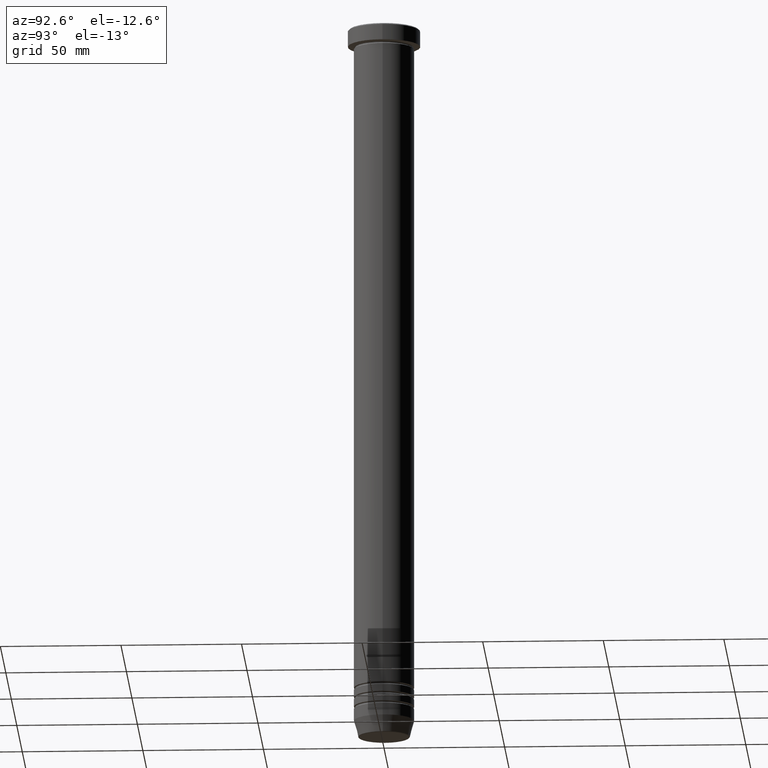
[diagram: clean part render]
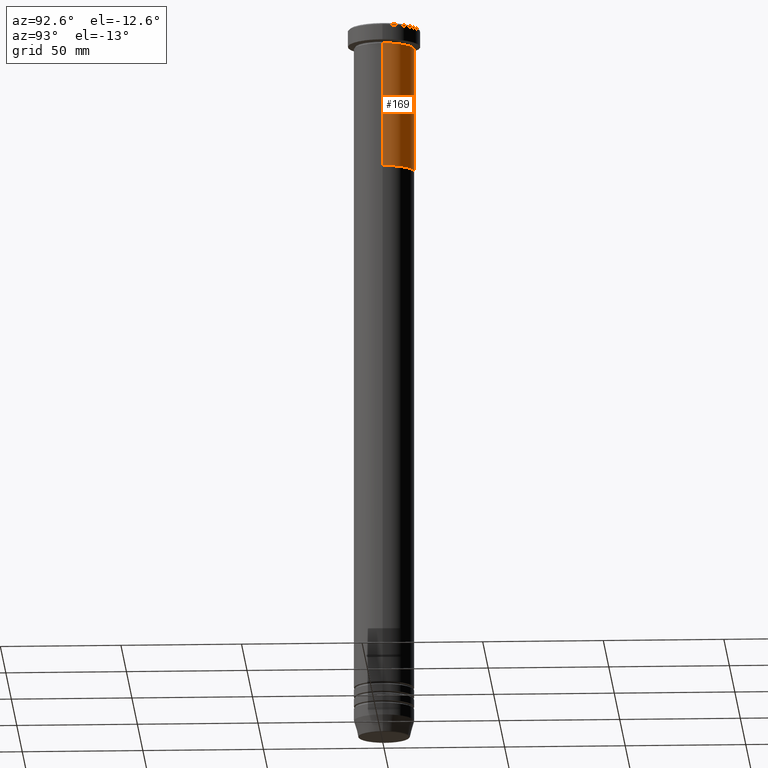
[diagram: same view with one face highlighted and labeled with its STEP entity id]
A machine part, auxiliary view. The second image highlights one B-rep face of the part: STEP entity #169.
In plain terms, the highlighted cylindrical surface (edge-blend (fillet) strip) has radius 12.5 mm, axis along (-0, -0, 1).
Its self-contained STEP definition (entity closure, byte-faithful):
#13 = AXIS2_PLACEMENT_3D ( 'NONE', #369, #616, #703 ) ;
#33 = VERTEX_POINT ( 'NONE', #394 ) ;
#48 = AXIS2_PLACEMENT_3D ( 'NONE', #788, #363, #211 ) ;
#93 = DIRECTION ( 'NONE',  ( -0.000000000000000000, -0.000000000000000000, 1.000000000000000000 ) ) ;
#159 = DIRECTION ( 'NONE',  ( -0.000000000000000000, -0.000000000000000000, 1.000000000000000000 ) ) ;
#168 = VERTEX_POINT ( 'NONE', #747 ) ;
#169 = ADVANCED_FACE ( 'NONE', ( #173 ), #725, .T. ) ;
#171 = CARTESIAN_POINT ( 'NONE',  ( 12.50000000000000000, 0.000000000000000000, 0.000000000000000000 ) ) ;
#173 = FACE_OUTER_BOUND ( 'NONE', #195, .T. ) ;
#195 = EDGE_LOOP ( 'NONE', ( #727, #847, #1017, #291 ) ) ;
#201 = AXIS2_PLACEMENT_3D ( 'NONE', #310, #93, #884 ) ;
#211 = DIRECTION ( 'NONE',  ( 1.000000000000000000, 0.000000000000000000, 0.000000000000000000 ) ) ;
#226 = LINE ( 'NONE', #980, #706 ) ;
#291 = ORIENTED_EDGE ( 'NONE', *, *, #690, .F. ) ;
#310 = CARTESIAN_POINT ( 'NONE',  ( 0.000000000000000000, 0.000000000000000000, 0.000000000000000000 ) ) ;
#361 = EDGE_CURVE ( 'NONE', #984, #33, #530, .T. ) ;
#363 = DIRECTION ( 'NONE',  ( -0.000000000000000000, -0.000000000000000000, 1.000000000000000000 ) ) ;
#369 = CARTESIAN_POINT ( 'NONE',  ( 0.000000000000000000, 0.000000000000000000, -8.000000000000000000 ) ) ;
#371 = VECTOR ( 'NONE', #746, 1000.000000000000000 ) ;
#394 = CARTESIAN_POINT ( 'NONE',  ( -12.50000000000000000, 1.530808498934191521E-15, -60.00000000000000000 ) ) ;
#408 = CARTESIAN_POINT ( 'NONE',  ( 12.50000000000000000, 0.000000000000000000, -60.00000000000000000 ) ) ;
#478 = CIRCLE ( 'NONE', #13, 12.50000000000000000 ) ;
#486 = EDGE_CURVE ( 'NONE', #168, #625, #478, .T. ) ;
#496 = CARTESIAN_POINT ( 'NONE',  ( -12.50000000000000000, 1.530808498934191521E-15, -8.000000000000000000 ) ) ;
#530 = CIRCLE ( 'NONE', #48, 12.50000000000000000 ) ;
#616 = DIRECTION ( 'NONE',  ( -0.000000000000000000, -0.000000000000000000, 1.000000000000000000 ) ) ;
#625 = VERTEX_POINT ( 'NONE', #496 ) ;
#690 = EDGE_CURVE ( 'NONE', #984, #168, #913, .T. ) ;
#703 = DIRECTION ( 'NONE',  ( 1.000000000000000000, 0.000000000000000000, 0.000000000000000000 ) ) ;
#706 = VECTOR ( 'NONE', #159, 1000.000000000000000 ) ;
#725 = CYLINDRICAL_SURFACE ( 'NONE', #201, 12.50000000000000000 ) ;
#727 = ORIENTED_EDGE ( 'NONE', *, *, #361, .T. ) ;
#746 = DIRECTION ( 'NONE',  ( -0.000000000000000000, -0.000000000000000000, 1.000000000000000000 ) ) ;
#747 = CARTESIAN_POINT ( 'NONE',  ( 12.50000000000000000, 0.000000000000000000, -8.000000000000000000 ) ) ;
#788 = CARTESIAN_POINT ( 'NONE',  ( 0.000000000000000000, 0.000000000000000000, -60.00000000000000000 ) ) ;
#847 = ORIENTED_EDGE ( 'NONE', *, *, #976, .T. ) ;
#884 = DIRECTION ( 'NONE',  ( 1.000000000000000000, 0.000000000000000000, 0.000000000000000000 ) ) ;
#913 = LINE ( 'NONE', #171, #371 ) ;
#976 = EDGE_CURVE ( 'NONE', #33, #625, #226, .T. ) ;
#980 = CARTESIAN_POINT ( 'NONE',  ( -12.50000000000000000, 1.530808498934191521E-15, 0.000000000000000000 ) ) ;
#984 = VERTEX_POINT ( 'NONE', #408 ) ;
#1017 = ORIENTED_EDGE ( 'NONE', *, *, #486, .F. ) ;